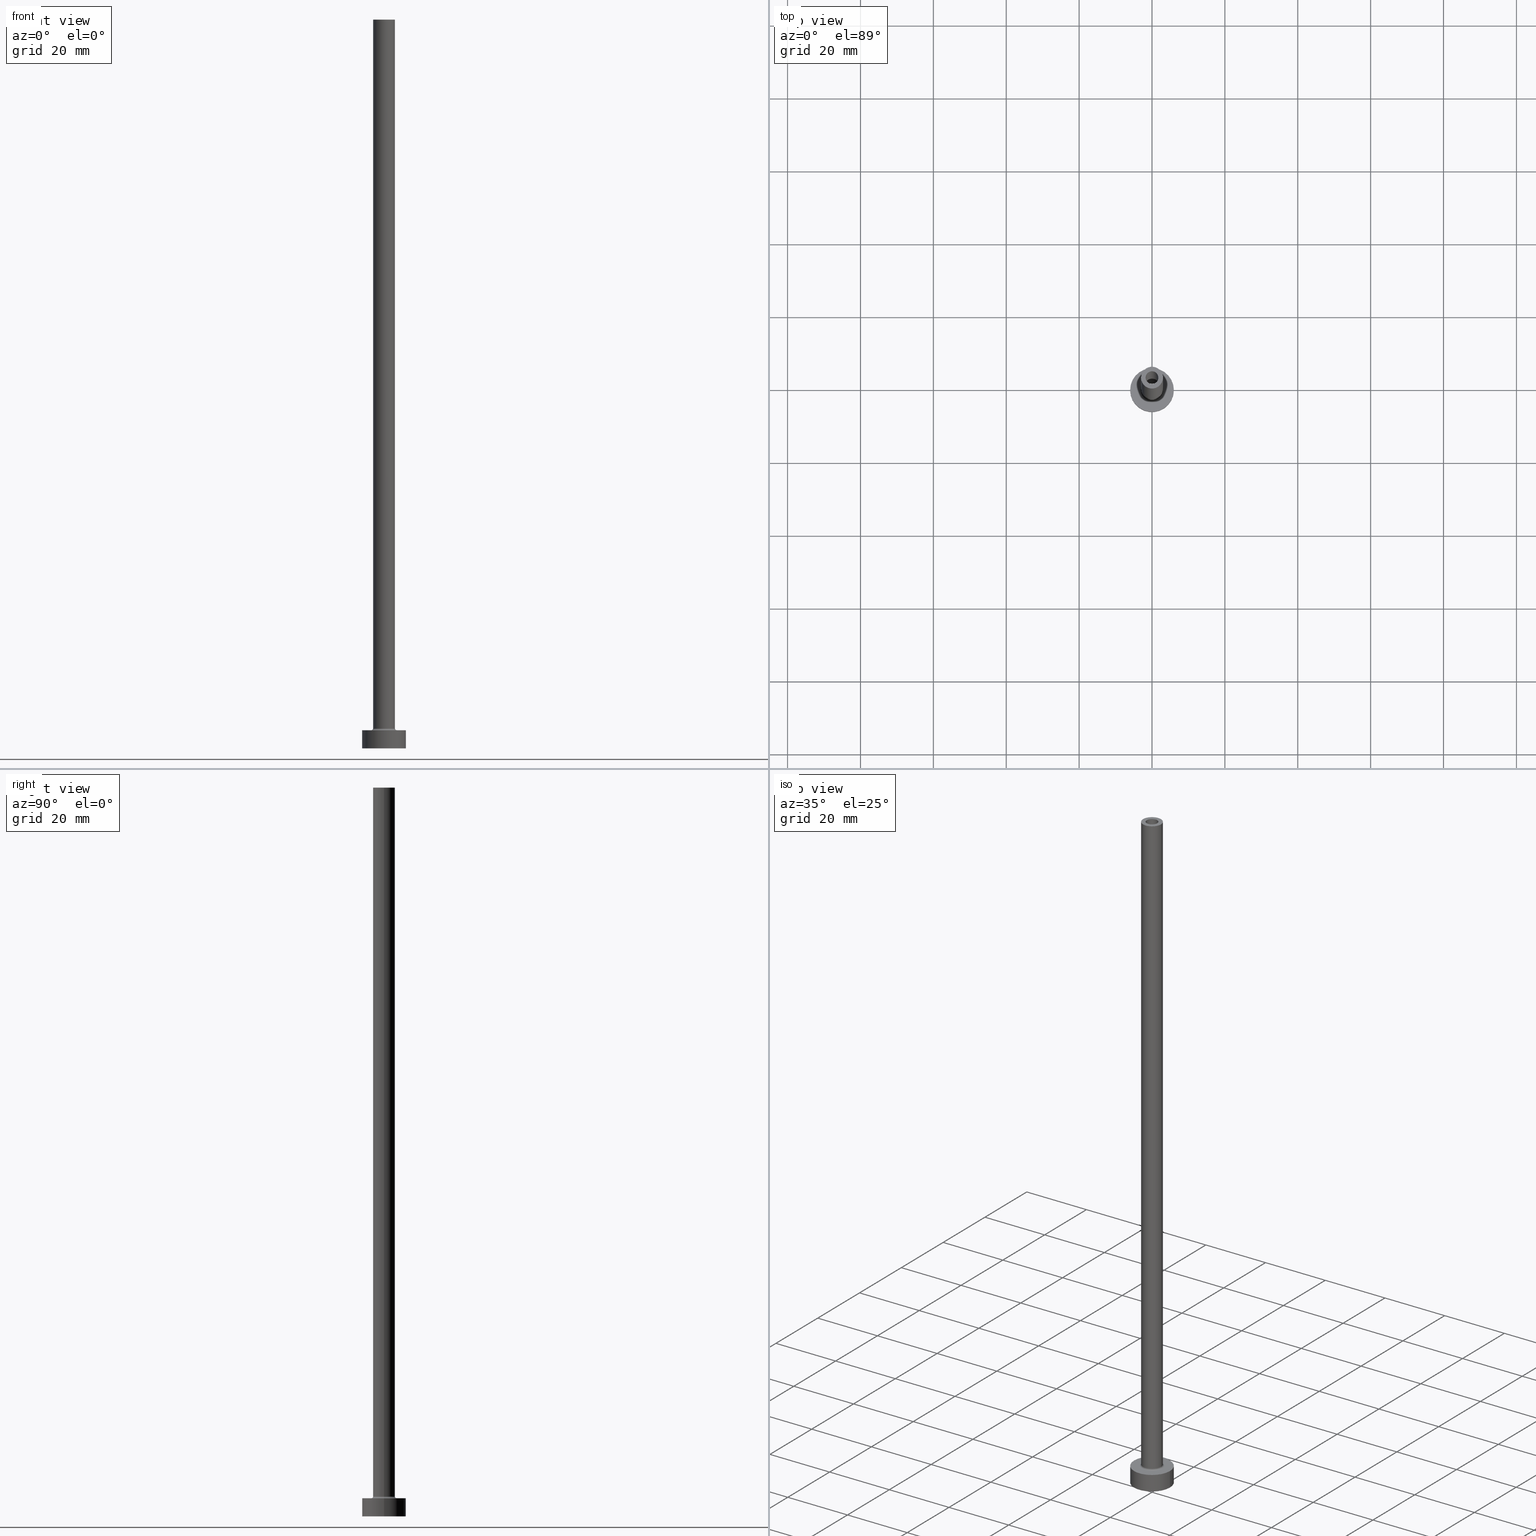
[diagram: canonical four-view strip — front | top / right | iso, engineering-drawing reading convention]
A machine part, canonical four-view strip (front | top / right | iso — engineering-drawing reading convention). The complete STEP part file that produces these views, byte-faithful:
ISO-10303-21;
HEADER;
FILE_DESCRIPTION (( 'STEP AP203' ),
    '1' );
FILE_NAME ('5815.STEP',
    '2023-02-13T17:51:05',
    ( '' ),
    ( '' ),
    'SwSTEP 2.0',
    'SolidWorks 2019',
    '' );
FILE_SCHEMA (( 'CONFIG_CONTROL_DESIGN' ));
ENDSEC;

DATA;
#1 = ADVANCED_FACE ( 'NONE', ( #438 ), #406, .F. ) ;
#2 = DIRECTION ( 'NONE',  ( 0.000000000000000000, 0.000000000000000000, 1.000000000000000000 ) ) ;
#3 = LOCAL_TIME ( 18, 51, 5.000000000000000000, #222 ) ;
#4 = APPROVAL ( #188, 'NEUR�EN�' ) ;
#5 = VERTEX_POINT ( 'NONE', #89 ) ;
#6 = ORIENTED_EDGE ( 'NONE', *, *, #422, .T. ) ;
#7 = CYLINDRICAL_SURFACE ( 'NONE', #176, 3.000000000000000444 ) ;
#8 = ORIENTED_EDGE ( 'NONE', *, *, #384, .T. ) ;
#9 = TOROIDAL_SURFACE ( 'NONE', #312, 3.500000000000000444, 0.5000000000000000000 ) ;
#10 = CIRCLE ( 'NONE', #281, 1.750000000000000000 ) ;
#11 = APPROVAL_DATE_TIME ( #125, #201 ) ;
#12 = VERTEX_POINT ( 'NONE', #85 ) ;
#13 = DIRECTION ( 'NONE',  ( -0.000000000000000000, -0.000000000000000000, -1.000000000000000000 ) ) ;
#14 = PLANE ( 'NONE',  #348 ) ;
#15 = DIRECTION ( 'NONE',  ( 0.000000000000000000, 0.000000000000000000, -1.000000000000000000 ) ) ;
#16 = FACE_OUTER_BOUND ( 'NONE', #61, .T. ) ;
#17 = EDGE_LOOP ( 'NONE', ( #6, #259 ) ) ;
#18 = PRODUCT_DEFINITION ( 'NEZN�M�', '', #330, #90 ) ;
#19 = PERSON_AND_ORGANIZATION_ROLE ( 'design_supplier' ) ;
#20 = CIRCLE ( 'NONE', #133, 1.750000000000000000 ) ;
#21 = DIRECTION ( 'NONE',  ( 0.000000000000000000, 0.000000000000000000, 1.000000000000000000 ) ) ;
#22 = APPLICATION_PROTOCOL_DEFINITION ( 'international standard', 'config_control_design', 1994, #144 ) ;
#23 = CARTESIAN_POINT ( 'NONE',  ( -1.750000000000000000, 0.000000000000000000, 200.0000000000000000 ) ) ;
#24 = ORIENTED_EDGE ( 'NONE', *, *, #67, .F. ) ;
#25 = DIRECTION ( 'NONE',  ( 1.000000000000000000, 0.000000000000000000, 0.000000000000000000 ) ) ;
#26 = PERSON_AND_ORGANIZATION ( #84, #110 ) ;
#27 = DIRECTION ( 'NONE',  ( -0.000000000000000000, -0.000000000000000000, -1.000000000000000000 ) ) ;
#28 = EDGE_CURVE ( 'NONE', #126, #442, #146, .T. ) ;
#29 = CYLINDRICAL_SURFACE ( 'NONE', #450, 6.000000000000000888 ) ;
#30 = CARTESIAN_POINT ( 'NONE',  ( -6.000000000000000888, 0.000000000000000000, 0.000000000000000000 ) ) ;
#31 = VECTOR ( 'NONE', #240, 1000.000000000000000 ) ;
#32 = LINE ( 'NONE', #23, #92 ) ;
#33 = DIRECTION ( 'NONE',  ( 1.000000000000000000, 0.000000000000000000, 0.000000000000000000 ) ) ;
#34 = DIRECTION ( 'NONE',  ( 0.000000000000000000, 0.000000000000000000, -1.000000000000000000 ) ) ;
#35 = ORIENTED_EDGE ( 'NONE', *, *, #362, .T. ) ;
#36 = DIRECTION ( 'NONE',  ( 0.000000000000000000, 0.000000000000000000, 1.000000000000000000 ) ) ;
#37 = AXIS2_PLACEMENT_3D ( 'NONE', #345, #315, #274 ) ;
#38 = LOCAL_TIME ( 18, 51, 5.000000000000000000, #162 ) ;
#39 = PRODUCT_RELATED_PRODUCT_CATEGORY ( 'detail', '', ( #42 ) ) ;
#40 = DIRECTION ( 'NONE',  ( 1.000000000000000000, 0.000000000000000000, 0.000000000000000000 ) ) ;
#41 = DIRECTION ( 'NONE',  ( 0.000000000000000000, 0.000000000000000000, -1.000000000000000000 ) ) ;
#42 = PRODUCT ( '5815', '5815', '', ( #91 ) ) ;
#43 = DIRECTION ( 'NONE',  ( 1.000000000000000000, 0.000000000000000000, 0.000000000000000000 ) ) ;
#44 = CIRCLE ( 'NONE', #343, 3.500000000000000444 ) ;
#45 = EDGE_LOOP ( 'NONE', ( #120, #286 ) ) ;
#46 = EDGE_CURVE ( 'NONE', #215, #5, #449, .T. ) ;
#47 = EDGE_CURVE ( 'NONE', #106, #325, #389, .T. ) ;
#48 = DIRECTION ( 'NONE',  ( 1.000000000000000000, 0.000000000000000000, -0.000000000000000000 ) ) ;
#49 = ORIENTED_EDGE ( 'NONE', *, *, #333, .F. ) ;
#50 = CC_DESIGN_DATE_AND_TIME_ASSIGNMENT ( #262, #394, ( #18 ) ) ;
#51 = AXIS2_PLACEMENT_3D ( 'NONE', #269, #418, #98 ) ;
#52 = EDGE_CURVE ( 'NONE', #288, #5, #456, .T. ) ;
#53 = CALENDAR_DATE ( 2023, 13, 2 ) ;
#54 = EDGE_LOOP ( 'NONE', ( #24, #447, #35, #229 ) ) ;
#55 = CARTESIAN_POINT ( 'NONE',  ( 3.000000000000000444, 3.673940397442060361E-16, 200.0000000000000000 ) ) ;
#56 = CARTESIAN_POINT ( 'NONE',  ( 0.000000000000000000, 0.000000000000000000, 155.0000000000000284 ) ) ;
#57 = CARTESIAN_POINT ( 'NONE',  ( 0.000000000000000000, 0.000000000000000000, 5.500000000000005329 ) ) ;
#58 = CALENDAR_DATE ( 2023, 13, 2 ) ;
#59 = ORIENTED_EDGE ( 'NONE', *, *, #74, .F. ) ;
#60 = ADVANCED_FACE ( 'NONE', ( #196 ), #164, .F. ) ;
#61 = EDGE_LOOP ( 'NONE', ( #204, #327, #235, #411 ) ) ;
#62 = ORIENTED_EDGE ( 'NONE', *, *, #417, .F. ) ;
#63 = CC_DESIGN_PERSON_AND_ORGANIZATION_ASSIGNMENT ( #435, #113, ( #330 ) ) ;
#64 = CARTESIAN_POINT ( 'NONE',  ( -3.000000000000000444, 0.000000000000000000, 200.0000000000000000 ) ) ;
#65 = VECTOR ( 'NONE', #378, 1000.000000000000000 ) ;
#66 = DIRECTION ( 'NONE',  ( -1.000000000000000000, 1.224646799147354440E-16, 0.000000000000000000 ) ) ;
#67 = EDGE_CURVE ( 'NONE', #126, #287, #115, .T. ) ;
#68 =( GEOMETRIC_REPRESENTATION_CONTEXT ( 3 ) GLOBAL_UNCERTAINTY_ASSIGNED_CONTEXT ( ( #189 ) ) GLOBAL_UNIT_ASSIGNED_CONTEXT ( ( #402, #170, #400 ) ) REPRESENTATION_CONTEXT ( 'NONE', 'WORKASPACE' ) );
#69 = LINE ( 'NONE', #460, #300 ) ;
#70 = DIRECTION ( 'NONE',  ( 1.000000000000000000, 0.000000000000000000, 0.000000000000000000 ) ) ;
#71 = EDGE_LOOP ( 'NONE', ( #62, #324, #424, #451 ) ) ;
#72 = CIRCLE ( 'NONE', #116, 3.000000000000000444 ) ;
#73 = ORIENTED_EDGE ( 'NONE', *, *, #124, .F. ) ;
#74 = EDGE_CURVE ( 'NONE', #129, #275, #237, .T. ) ;
#75 = EDGE_LOOP ( 'NONE', ( #388, #335, #77, #248 ) ) ;
#76 = ADVANCED_FACE ( 'NONE', ( #278 ), #9, .F. ) ;
#77 = ORIENTED_EDGE ( 'NONE', *, *, #384, .F. ) ;
#78 = PERSON_AND_ORGANIZATION ( #84, #110 ) ;
#79 = CARTESIAN_POINT ( 'NONE',  ( 0.000000000000000000, 0.000000000000000000, 5.000000000000000000 ) ) ;
#80 = APPROVAL_ROLE ( '' ) ;
#81 = ORIENTED_EDGE ( 'NONE', *, *, #381, .T. ) ;
#82 = EDGE_CURVE ( 'NONE', #114, #219, #354, .T. ) ;
#83 = CIRCLE ( 'NONE', #128, 1.899999999999999911 ) ;
#84 = PERSON ( 'NEUR�EN�', 'NEUR�EN�', 'NEUR�EN�', ('NEUR�EN�'), ('NEUR�EN�'), ('NEUR�EN�') ) ;
#85 = CARTESIAN_POINT ( 'NONE',  ( -1.899999999999999911, 0.000000000000000000, 0.000000000000000000 ) ) ;
#86 = COORDINATED_UNIVERSAL_TIME_OFFSET ( 1, 0, .AHEAD. ) ;
#87 = CARTESIAN_POINT ( 'NONE',  ( 1.750000000000000000, 2.143131898507867804E-16, 200.0000000000000000 ) ) ;
#88 = COORDINATED_UNIVERSAL_TIME_OFFSET ( 1, 0, .AHEAD. ) ;
#89 = CARTESIAN_POINT ( 'NONE',  ( 6.000000000000000888, 7.347880794884120722E-16, 0.000000000000000000 ) ) ;
#90 = DESIGN_CONTEXT ( 'detailed design', #118, 'design' ) ;
#91 = MECHANICAL_CONTEXT ( 'NONE', #144, 'mechanical' ) ;
#92 = VECTOR ( 'NONE', #308, 1000.000000000000000 ) ;
#93 = DIRECTION ( 'NONE',  ( 1.000000000000000000, 0.000000000000000000, 0.000000000000000000 ) ) ;
#94 = DIRECTION ( 'NONE',  ( -1.000000000000000000, 0.000000000000000000, 0.000000000000000000 ) ) ;
#95 = ORIENTED_EDGE ( 'NONE', *, *, #82, .T. ) ;
#96 = DIRECTION ( 'NONE',  ( 1.000000000000000000, 0.000000000000000000, 0.000000000000000000 ) ) ;
#97 = CARTESIAN_POINT ( 'NONE',  ( 0.000000000000000000, 0.000000000000000000, 155.0000000000000284 ) ) ;
#98 = DIRECTION ( 'NONE',  ( 1.000000000000000000, 0.000000000000000000, 0.000000000000000000 ) ) ;
#99 = AXIS2_PLACEMENT_3D ( 'NONE', #416, #380, #264 ) ;
#100 = EDGE_CURVE ( 'NONE', #288, #165, #166, .T. ) ;
#101 = VECTOR ( 'NONE', #369, 1000.000000000000000 ) ;
#102 = VECTOR ( 'NONE', #34, 1000.000000000000000 ) ;
#103 = DIRECTION ( 'NONE',  ( -1.000000000000000000, 0.000000000000000000, 0.000000000000000000 ) ) ;
#104 = CARTESIAN_POINT ( 'NONE',  ( 0.000000000000000000, 0.000000000000000000, 5.000000000000000000 ) ) ;
#105 = FACE_OUTER_BOUND ( 'NONE', #45, .T. ) ;
#106 = VERTEX_POINT ( 'NONE', #134 ) ;
#107 = FACE_BOUND ( 'NONE', #399, .T. ) ;
#108 = ORIENTED_EDGE ( 'NONE', *, *, #124, .T. ) ;
#109 = VECTOR ( 'NONE', #412, 1000.000000000000000 ) ;
#110 = ORGANIZATION ( 'NEUR�EN�', 'NEUR�EN�', '' ) ;
#111 = DIRECTION ( 'NONE',  ( 1.000000000000000000, 0.000000000000000000, 0.000000000000000000 ) ) ;
#112 = ADVANCED_FACE ( 'NONE', ( #273, #243 ), #205, .F. ) ;
#113 = PERSON_AND_ORGANIZATION_ROLE ( 'creator' ) ;
#114 = VERTEX_POINT ( 'NONE', #423 ) ;
#115 = CIRCLE ( 'NONE', #244, 3.000000000000000444 ) ;
#116 = AXIS2_PLACEMENT_3D ( 'NONE', #260, #338, #96 ) ;
#117 = APPROVAL_PERSON_ORGANIZATION ( #398, #201, #303 ) ;
#118 = APPLICATION_CONTEXT ( 'configuration controlled 3d designs of mechanical parts and assemblies' ) ;
#119 = PERSON_AND_ORGANIZATION ( #84, #110 ) ;
#120 = ORIENTED_EDGE ( 'NONE', *, *, #46, .F. ) ;
#121 = CARTESIAN_POINT ( 'NONE',  ( 0.000000000000000000, 0.000000000000000000, 5.500000000000005329 ) ) ;
#122 = DIRECTION ( 'NONE',  ( 1.000000000000000000, 0.000000000000000000, 0.000000000000000000 ) ) ;
#123 = ADVANCED_FACE ( 'NONE', ( #270 ), #279, .F. ) ;
#124 = EDGE_CURVE ( 'NONE', #165, #215, #409, .T. ) ;
#125 = DATE_AND_TIME ( #445, #284 ) ;
#126 = VERTEX_POINT ( 'NONE', #443 ) ;
#127 = AXIS2_PLACEMENT_3D ( 'NONE', #104, #322, #455 ) ;
#128 = AXIS2_PLACEMENT_3D ( 'NONE', #195, #407, #340 ) ;
#129 = VERTEX_POINT ( 'NONE', #339 ) ;
#130 = DIRECTION ( 'NONE',  ( 1.000000000000000000, 0.000000000000000000, 0.000000000000000000 ) ) ;
#131 = CARTESIAN_POINT ( 'NONE',  ( 0.000000000000000000, 0.000000000000000000, 5.000000000000000000 ) ) ;
#132 = CLOSED_SHELL ( 'NONE', ( #1, #304, #76, #214, #175, #135, #326, #452, #199, #148, #123, #60, #112, #366 ) ) ;
#133 = AXIS2_PLACEMENT_3D ( 'NONE', #56, #310, #444 ) ;
#134 = CARTESIAN_POINT ( 'NONE',  ( -3.000000000000000444, 0.000000000000000000, 5.500000000000005329 ) ) ;
#135 = ADVANCED_FACE ( 'NONE', ( #415 ), #29, .T. ) ;
#136 = CARTESIAN_POINT ( 'NONE',  ( 0.000000000000000000, 0.000000000000000000, 0.000000000000000000 ) ) ;
#137 = CARTESIAN_POINT ( 'NONE',  ( 0.000000000000000000, 0.000000000000000000, 5.000000000000000000 ) ) ;
#138 = DIRECTION ( 'NONE',  ( 0.000000000000000000, 0.000000000000000000, 1.000000000000000000 ) ) ;
#139 = CIRCLE ( 'NONE', #376, 6.000000000000000888 ) ;
#140 = DIRECTION ( 'NONE',  ( -1.000000000000000000, 0.000000000000000000, 0.000000000000000000 ) ) ;
#141 = ORIENTED_EDGE ( 'NONE', *, *, #268, .F. ) ;
#142 = DIRECTION ( 'NONE',  ( -1.000000000000000000, 0.000000000000000000, 0.000000000000000000 ) ) ;
#143 = CIRCLE ( 'NONE', #292, 1.899999999999999911 ) ;
#144 = APPLICATION_CONTEXT ( 'configuration controlled 3d designs of mechanical parts and assemblies' ) ;
#145 = EDGE_CURVE ( 'NONE', #219, #114, #10, .T. ) ;
#146 = LINE ( 'NONE', #55, #101 ) ;
#147 = EDGE_LOOP ( 'NONE', ( #169, #49, #177, #346 ) ) ;
#148 = ADVANCED_FACE ( 'NONE', ( #107, #253 ), #14, .T. ) ;
#149 = APPROVAL_STATUS ( 'not_yet_approved' ) ;
#150 = DIRECTION ( 'NONE',  ( 1.000000000000000000, 0.000000000000000000, -0.000000000000000000 ) ) ;
#151 = FACE_OUTER_BOUND ( 'NONE', #147, .T. ) ;
#152 = PERSON_AND_ORGANIZATION ( #84, #110 ) ;
#153 = AXIS2_PLACEMENT_3D ( 'NONE', #57, #336, #25 ) ;
#154 = ORIENTED_EDGE ( 'NONE', *, *, #167, .F. ) ;
#155 = AXIS2_PLACEMENT_3D ( 'NONE', #332, #13, #225 ) ;
#156 = CIRCLE ( 'NONE', #202, 3.000000000000000444 ) ;
#157 = DIRECTION ( 'NONE',  ( 1.000000000000000000, 0.000000000000000000, 0.000000000000000000 ) ) ;
#158 = COORDINATED_UNIVERSAL_TIME_OFFSET ( 1, 0, .AHEAD. ) ;
#159 = CYLINDRICAL_SURFACE ( 'NONE', #321, 6.000000000000000888 ) ;
#160 = CARTESIAN_POINT ( 'NONE',  ( -6.000000000000000888, 0.000000000000000000, 5.000000000000000000 ) ) ;
#161 = DIRECTION ( 'NONE',  ( 0.000000000000000000, 0.000000000000000000, 1.000000000000000000 ) ) ;
#162 = COORDINATED_UNIVERSAL_TIME_OFFSET ( 1, 0, .AHEAD. ) ;
#163 = CYLINDRICAL_SURFACE ( 'NONE', #420, 1.899999999999999911 ) ;
#164 = CYLINDRICAL_SURFACE ( 'NONE', #99, 1.899999999999999911 ) ;
#165 = VERTEX_POINT ( 'NONE', #297 ) ;
#166 = CIRCLE ( 'NONE', #127, 6.000000000000000888 ) ;
#167 = EDGE_CURVE ( 'NONE', #114, #191, #32, .T. ) ;
#168 = CIRCLE ( 'NONE', #439, 6.000000000000000888 ) ;
#169 = ORIENTED_EDGE ( 'NONE', *, *, #28, .F. ) ;
#170 =( NAMED_UNIT ( * ) PLANE_ANGLE_UNIT ( ) SI_UNIT ( $, .RADIAN. ) );
#171 = FACE_OUTER_BOUND ( 'NONE', #71, .T. ) ;
#172 = DIRECTION ( 'NONE',  ( 0.000000000000000000, 0.000000000000000000, 1.000000000000000000 ) ) ;
#173 = ORIENTED_EDGE ( 'NONE', *, *, #282, .F. ) ;
#174 = DIRECTION ( 'NONE',  ( 0.000000000000000000, 0.000000000000000000, -1.000000000000000000 ) ) ;
#175 = ADVANCED_FACE ( 'NONE', ( #446 ), #159, .T. ) ;
#176 = AXIS2_PLACEMENT_3D ( 'NONE', #361, #186, #181 ) ;
#177 = ORIENTED_EDGE ( 'NONE', *, *, #184, .T. ) ;
#178 = ORIENTED_EDGE ( 'NONE', *, *, #433, .T. ) ;
#179 = ORIENTED_EDGE ( 'NONE', *, *, #458, .F. ) ;
#180 = ORIENTED_EDGE ( 'NONE', *, *, #233, .F. ) ;
#181 = DIRECTION ( 'NONE',  ( -1.000000000000000000, 0.000000000000000000, 0.000000000000000000 ) ) ;
#182 = APPROVAL_DATE_TIME ( #256, #4 ) ;
#183 = APPROVAL_PERSON_ORGANIZATION ( #119, #453, #193 ) ;
#184 = EDGE_CURVE ( 'NONE', #287, #106, #234, .T. ) ;
#185 = CC_DESIGN_SECURITY_CLASSIFICATION ( #272, ( #330 ) ) ;
#186 = DIRECTION ( 'NONE',  ( -0.000000000000000000, -0.000000000000000000, -1.000000000000000000 ) ) ;
#187 = ADVANCED_BREP_SHAPE_REPRESENTATION ( '5815', ( #414, #313 ), #68 ) ;
#188 = APPROVAL_STATUS ( 'not_yet_approved' ) ;
#189 = UNCERTAINTY_MEASURE_WITH_UNIT (LENGTH_MEASURE( 1.000000000000000082E-05 ), #402, 'distance_accuracy_value', 'NONE');
#190 = PERSON_AND_ORGANIZATION ( #84, #110 ) ;
#191 = VERTEX_POINT ( 'NONE', #368 ) ;
#192 = AXIS2_PLACEMENT_3D ( 'NONE', #136, #350, #387 ) ;
#193 = APPROVAL_ROLE ( '' ) ;
#194 = CC_DESIGN_PERSON_AND_ORGANIZATION_ASSIGNMENT ( #26, #228, ( #272 ) ) ;
#195 = CARTESIAN_POINT ( 'NONE',  ( 0.000000000000000000, 0.000000000000000000, 155.0000000000000284 ) ) ;
#196 = FACE_OUTER_BOUND ( 'NONE', #223, .T. ) ;
#197 = EDGE_LOOP ( 'NONE', ( #360, #250, #81, #73 ) ) ;
#198 = DIRECTION ( 'NONE',  ( -0.000000000000000000, -0.000000000000000000, -1.000000000000000000 ) ) ;
#199 = ADVANCED_FACE ( 'NONE', ( #151 ), #7, .T. ) ;
#200 = DIRECTION ( 'NONE',  ( 0.000000000000000000, 0.000000000000000000, 1.000000000000000000 ) ) ;
#202 = AXIS2_PLACEMENT_3D ( 'NONE', #121, #277, #349 ) ;
#201 = APPROVAL ( #149, 'NEUR�EN�' ) ;
#203 = DIRECTION ( 'NONE',  ( 0.000000000000000000, 0.000000000000000000, 1.000000000000000000 ) ) ;
#204 = ORIENTED_EDGE ( 'NONE', *, *, #393, .T. ) ;
#205 = PLANE ( 'NONE',  #37 ) ;
#206 = CARTESIAN_POINT ( 'NONE',  ( 1.899999999999999911, 2.326828918379971365E-16, 160.3740115370177932 ) ) ;
#207 = ORIENTED_EDGE ( 'NONE', *, *, #458, .T. ) ;
#208 = CARTESIAN_POINT ( 'NONE',  ( 3.500000000000000444, 0.000000000000000000, 5.500000000000005329 ) ) ;
#209 = CARTESIAN_POINT ( 'NONE',  ( 3.500000000000000444, 0.000000000000000000, 5.000000000000002665 ) ) ;
#210 = EDGE_LOOP ( 'NONE', ( #373, #290 ) ) ;
#211 = CARTESIAN_POINT ( 'NONE',  ( 0.000000000000000000, 0.000000000000000000, 200.0000000000000000 ) ) ;
#212 = ORIENTED_EDGE ( 'NONE', *, *, #145, .F. ) ;
#213 = CIRCLE ( 'NONE', #421, 1.750000000000000000 ) ;
#214 = ADVANCED_FACE ( 'NONE', ( #252 ), #364, .T. ) ;
#215 = VERTEX_POINT ( 'NONE', #30 ) ;
#216 = DIRECTION ( 'NONE',  ( 0.000000000000000000, 0.000000000000000000, -1.000000000000000000 ) ) ;
#217 = EDGE_CURVE ( 'NONE', #454, #191, #20, .T. ) ;
#218 = SHAPE_DEFINITION_REPRESENTATION ( #363, #187 ) ;
#219 = VERTEX_POINT ( 'NONE', #87 ) ;
#220 = DATE_AND_TIME ( #301, #323 ) ;
#221 = AXIS2_PLACEMENT_3D ( 'NONE', #131, #227, #232 ) ;
#222 = COORDINATED_UNIVERSAL_TIME_OFFSET ( 1, 0, .AHEAD. ) ;
#223 = EDGE_LOOP ( 'NONE', ( #59, #316, #263, #207 ) ) ;
#224 = DIRECTION ( 'NONE',  ( -1.000000000000000000, 0.000000000000000000, 0.000000000000000000 ) ) ;
#225 = DIRECTION ( 'NONE',  ( -1.000000000000000000, 0.000000000000000000, 0.000000000000000000 ) ) ;
#226 = ORIENTED_EDGE ( 'NONE', *, *, #333, .T. ) ;
#227 = DIRECTION ( 'NONE',  ( -0.000000000000000000, -0.000000000000000000, -1.000000000000000000 ) ) ;
#228 = PERSON_AND_ORGANIZATION_ROLE ( 'classification_officer' ) ;
#229 = ORIENTED_EDGE ( 'NONE', *, *, #184, .F. ) ;
#230 = CC_DESIGN_APPROVAL ( #4, ( #18 ) ) ;
#231 = PLANE ( 'NONE',  #271 ) ;
#232 = DIRECTION ( 'NONE',  ( 1.000000000000000000, 0.000000000000000000, 0.000000000000000000 ) ) ;
#233 = EDGE_CURVE ( 'NONE', #325, #382, #306, .T. ) ;
#234 = LINE ( 'NONE', #341, #31 ) ;
#235 = ORIENTED_EDGE ( 'NONE', *, *, #392, .T. ) ;
#236 = DIRECTION ( 'NONE',  ( 1.000000000000000000, 0.000000000000000000, 0.000000000000000000 ) ) ;
#237 = LINE ( 'NONE', #206, #432 ) ;
#238 = ORIENTED_EDGE ( 'NONE', *, *, #67, .T. ) ;
#239 = CC_DESIGN_PERSON_AND_ORGANIZATION_ASSIGNMENT ( #78, #410, ( #18 ) ) ;
#240 = DIRECTION ( 'NONE',  ( -0.000000000000000000, -0.000000000000000000, -1.000000000000000000 ) ) ;
#241 = EDGE_LOOP ( 'NONE', ( #179, #298 ) ) ;
#242 = CIRCLE ( 'NONE', #413, 1.899999999999999911 ) ;
#243 = FACE_OUTER_BOUND ( 'NONE', #459, .T. ) ;
#244 = AXIS2_PLACEMENT_3D ( 'NONE', #375, #161, #93 ) ;
#245 = LOCAL_TIME ( 18, 51, 5.000000000000000000, #86 ) ;
#246 = CARTESIAN_POINT ( 'NONE',  ( 0.000000000000000000, 0.000000000000000000, 5.500000000000005329 ) ) ;
#247 = ORIENTED_EDGE ( 'NONE', *, *, #417, .T. ) ;
#248 = ORIENTED_EDGE ( 'NONE', *, *, #433, .F. ) ;
#249 = EDGE_CURVE ( 'NONE', #430, #12, #305, .T. ) ;
#250 = ORIENTED_EDGE ( 'NONE', *, *, #52, .T. ) ;
#251 = AXIS2_PLACEMENT_3D ( 'NONE', #431, #198, #33 ) ;
#252 = FACE_OUTER_BOUND ( 'NONE', #54, .T. ) ;
#253 = FACE_OUTER_BOUND ( 'NONE', #255, .T. ) ;
#254 = DATE_AND_TIME ( #299, #245 ) ;
#255 = EDGE_LOOP ( 'NONE', ( #226, #238 ) ) ;
#256 = DATE_AND_TIME ( #53, #3 ) ;
#257 = CARTESIAN_POINT ( 'NONE',  ( 0.000000000000000000, 0.000000000000000000, 160.3740115370177932 ) ) ;
#258 = CC_DESIGN_APPROVAL ( #453, ( #330 ) ) ;
#259 = ORIENTED_EDGE ( 'NONE', *, *, #100, .T. ) ;
#260 = CARTESIAN_POINT ( 'NONE',  ( 0.000000000000000000, 0.000000000000000000, 200.0000000000000000 ) ) ;
#261 = CARTESIAN_POINT ( 'NONE',  ( -1.899999999999999911, 0.000000000000000000, 160.3740115370177932 ) ) ;
#262 = DATE_AND_TIME ( #58, #38 ) ;
#263 = ORIENTED_EDGE ( 'NONE', *, *, #249, .T. ) ;
#264 = DIRECTION ( 'NONE',  ( -1.000000000000000000, 0.000000000000000000, 0.000000000000000000 ) ) ;
#265 = DIRECTION ( 'NONE',  ( 1.224646799147353207E-16, 1.000000000000000000, -0.000000000000000000 ) ) ;
#266 = AXIS2_PLACEMENT_3D ( 'NONE', #211, #36, #43 ) ;
#267 = CIRCLE ( 'NONE', #390, 0.5000000000000004441 ) ;
#268 = EDGE_CURVE ( 'NONE', #129, #430, #83, .T. ) ;
#269 = CARTESIAN_POINT ( 'NONE',  ( 0.000000000000000000, 0.000000000000000000, 5.500000000000005329 ) ) ;
#270 = FACE_OUTER_BOUND ( 'NONE', #302, .T. ) ;
#271 = AXIS2_PLACEMENT_3D ( 'NONE', #79, #371, #150 ) ;
#272 = SECURITY_CLASSIFICATION ( '', '', #331 ) ;
#273 = FACE_BOUND ( 'NONE', #210, .T. ) ;
#274 = DIRECTION ( 'NONE',  ( 1.000000000000000000, 0.000000000000000000, -0.000000000000000000 ) ) ;
#275 = VERTEX_POINT ( 'NONE', #419 ) ;
#276 = DIRECTION ( 'NONE',  ( -0.000000000000000000, -0.000000000000000000, -1.000000000000000000 ) ) ;
#277 = DIRECTION ( 'NONE',  ( 0.000000000000000000, 0.000000000000000000, 1.000000000000000000 ) ) ;
#278 = FACE_OUTER_BOUND ( 'NONE', #75, .T. ) ;
#279 = TOROIDAL_SURFACE ( 'NONE', #153, 3.500000000000000444, 0.5000000000000000000 ) ;
#280 = CARTESIAN_POINT ( 'NONE',  ( 0.000000000000000000, 0.000000000000000000, 200.0000000000000000 ) ) ;
#281 = AXIS2_PLACEMENT_3D ( 'NONE', #428, #395, #111 ) ;
#282 = EDGE_CURVE ( 'NONE', #191, #454, #213, .T. ) ;
#283 = DIRECTION ( 'NONE',  ( 0.000000000000000000, 0.000000000000000000, -1.000000000000000000 ) ) ;
#284 = LOCAL_TIME ( 18, 51, 5.000000000000000000, #88 ) ;
#285 = CC_DESIGN_PERSON_AND_ORGANIZATION_ASSIGNMENT ( #190, #19, ( #330 ) ) ;
#286 = ORIENTED_EDGE ( 'NONE', *, *, #381, .F. ) ;
#287 = VERTEX_POINT ( 'NONE', #64 ) ;
#288 = VERTEX_POINT ( 'NONE', #405 ) ;
#289 = PLANE ( 'NONE',  #192 ) ;
#290 = ORIENTED_EDGE ( 'NONE', *, *, #217, .T. ) ;
#291 = CARTESIAN_POINT ( 'NONE',  ( -3.500000000000000444, 4.286263797015737088E-16, 5.500000000000005329 ) ) ;
#292 = AXIS2_PLACEMENT_3D ( 'NONE', #383, #276, #425 ) ;
#293 = CC_DESIGN_APPROVAL ( #201, ( #272 ) ) ;
#294 = APPROVAL_DATE_TIME ( #254, #453 ) ;
#295 = CC_DESIGN_PERSON_AND_ORGANIZATION_ASSIGNMENT ( #152, #296, ( #42 ) ) ;
#296 = PERSON_AND_ORGANIZATION_ROLE ( 'design_owner' ) ;
#297 = CARTESIAN_POINT ( 'NONE',  ( -6.000000000000000888, 0.000000000000000000, 5.000000000000000000 ) ) ;
#298 = ORIENTED_EDGE ( 'NONE', *, *, #392, .F. ) ;
#299 = CALENDAR_DATE ( 2023, 13, 2 ) ;
#300 = VECTOR ( 'NONE', #174, 1000.000000000000000 ) ;
#301 = CALENDAR_DATE ( 2023, 13, 2 ) ;
#302 = EDGE_LOOP ( 'NONE', ( #328, #367, #178, #180 ) ) ;
#303 = APPROVAL_ROLE ( '' ) ;
#304 = ADVANCED_FACE ( 'NONE', ( #16 ), #163, .F. ) ;
#305 = LINE ( 'NONE', #261, #102 ) ;
#306 = CIRCLE ( 'NONE', #221, 3.500000000000000444 ) ;
#307 = CARTESIAN_POINT ( 'NONE',  ( 0.000000000000000000, 0.000000000000000000, 155.0000000000000284 ) ) ;
#308 = DIRECTION ( 'NONE',  ( 0.000000000000000000, 0.000000000000000000, -1.000000000000000000 ) ) ;
#309 = ORIENTED_EDGE ( 'NONE', *, *, #82, .F. ) ;
#310 = DIRECTION ( 'NONE',  ( 0.000000000000000000, 0.000000000000000000, 1.000000000000000000 ) ) ;
#311 = EDGE_LOOP ( 'NONE', ( #357, #379, #108, #353 ) ) ;
#312 = AXIS2_PLACEMENT_3D ( 'NONE', #246, #172, #318 ) ;
#313 = AXIS2_PLACEMENT_3D ( 'NONE', #377, #408, #122 ) ;
#314 = DIRECTION ( 'NONE',  ( -0.000000000000000000, -0.000000000000000000, -1.000000000000000000 ) ) ;
#315 = DIRECTION ( 'NONE',  ( 0.000000000000000000, 0.000000000000000000, 1.000000000000000000 ) ) ;
#316 = ORIENTED_EDGE ( 'NONE', *, *, #268, .T. ) ;
#317 = CYLINDRICAL_SURFACE ( 'NONE', #334, 1.750000000000000000 ) ;
#318 = DIRECTION ( 'NONE',  ( 1.000000000000000000, 0.000000000000000000, 0.000000000000000000 ) ) ;
#319 = CARTESIAN_POINT ( 'NONE',  ( 1.750000000000000000, 2.143131898507867804E-16, 155.0000000000000284 ) ) ;
#320 = CARTESIAN_POINT ( 'NONE',  ( 3.000000000000000444, 3.673940397442060361E-16, 5.500000000000005329 ) ) ;
#321 = AXIS2_PLACEMENT_3D ( 'NONE', #441, #27, #94 ) ;
#322 = DIRECTION ( 'NONE',  ( 0.000000000000000000, 0.000000000000000000, 1.000000000000000000 ) ) ;
#323 = LOCAL_TIME ( 18, 51, 5.000000000000000000, #158 ) ;
#324 = ORIENTED_EDGE ( 'NONE', *, *, #145, .T. ) ;
#325 = VERTEX_POINT ( 'NONE', #358 ) ;
#326 = ADVANCED_FACE ( 'NONE', ( #342, #374 ), #231, .T. ) ;
#327 = ORIENTED_EDGE ( 'NONE', *, *, #74, .T. ) ;
#328 = ORIENTED_EDGE ( 'NONE', *, *, #47, .F. ) ;
#329 = AXIS2_PLACEMENT_3D ( 'NONE', #291, #265, #66 ) ;
#330 = PRODUCT_DEFINITION_FORMATION_WITH_SPECIFIED_SOURCE ( 'LIBOVOLN�', '', #42, .NOT_KNOWN. ) ;
#331 = SECURITY_CLASSIFICATION_LEVEL ( 'unclassified' ) ;
#332 = CARTESIAN_POINT ( 'NONE',  ( 0.000000000000000000, 0.000000000000000000, 200.0000000000000000 ) ) ;
#333 = EDGE_CURVE ( 'NONE', #287, #126, #72, .T. ) ;
#334 = AXIS2_PLACEMENT_3D ( 'NONE', #280, #427, #140 ) ;
#335 = ORIENTED_EDGE ( 'NONE', *, *, #47, .T. ) ;
#336 = DIRECTION ( 'NONE',  ( 0.000000000000000000, 0.000000000000000000, 1.000000000000000000 ) ) ;
#337 = APPLICATION_PROTOCOL_DEFINITION ( 'international standard', 'config_control_design', 1994, #118 ) ;
#338 = DIRECTION ( 'NONE',  ( 0.000000000000000000, 0.000000000000000000, 1.000000000000000000 ) ) ;
#339 = CARTESIAN_POINT ( 'NONE',  ( 1.899999999999999911, 2.326828918379971365E-16, 155.0000000000000284 ) ) ;
#340 = DIRECTION ( 'NONE',  ( 1.000000000000000000, 0.000000000000000000, 0.000000000000000000 ) ) ;
#341 = CARTESIAN_POINT ( 'NONE',  ( -3.000000000000000444, 0.000000000000000000, 200.0000000000000000 ) ) ;
#342 = FACE_BOUND ( 'NONE', #386, .T. ) ;
#343 = AXIS2_PLACEMENT_3D ( 'NONE', #352, #314, #40 ) ;
#344 = CARTESIAN_POINT ( 'NONE',  ( 6.000000000000000888, 7.347880794884120722E-16, 5.000000000000000000 ) ) ;
#345 = CARTESIAN_POINT ( 'NONE',  ( 0.000000000000000000, 0.000000000000000000, 155.0000000000000284 ) ) ;
#346 = ORIENTED_EDGE ( 'NONE', *, *, #397, .T. ) ;
#347 = AXIS2_PLACEMENT_3D ( 'NONE', #396, #21, #157 ) ;
#348 = AXIS2_PLACEMENT_3D ( 'NONE', #401, #359, #48 ) ;
#349 = DIRECTION ( 'NONE',  ( 1.000000000000000000, 0.000000000000000000, 0.000000000000000000 ) ) ;
#350 = DIRECTION ( 'NONE',  ( 0.000000000000000000, 0.000000000000000000, 1.000000000000000000 ) ) ;
#351 = DIRECTION ( 'NONE',  ( 0.000000000000000000, -1.000000000000000000, 0.000000000000000000 ) ) ;
#352 = CARTESIAN_POINT ( 'NONE',  ( 0.000000000000000000, 0.000000000000000000, 5.000000000000000000 ) ) ;
#353 = ORIENTED_EDGE ( 'NONE', *, *, #46, .T. ) ;
#354 = CIRCLE ( 'NONE', #266, 1.750000000000000000 ) ;
#355 = AXIS2_PLACEMENT_3D ( 'NONE', #365, #15, #224 ) ;
#356 = CIRCLE ( 'NONE', #51, 3.000000000000000444 ) ;
#357 = ORIENTED_EDGE ( 'NONE', *, *, #52, .F. ) ;
#358 = CARTESIAN_POINT ( 'NONE',  ( -3.500000000000000444, 4.286263797015737088E-16, 5.000000000000002665 ) ) ;
#359 = DIRECTION ( 'NONE',  ( 0.000000000000000000, 0.000000000000000000, 1.000000000000000000 ) ) ;
#360 = ORIENTED_EDGE ( 'NONE', *, *, #100, .F. ) ;
#361 = CARTESIAN_POINT ( 'NONE',  ( 0.000000000000000000, 0.000000000000000000, 200.0000000000000000 ) ) ;
#362 = EDGE_CURVE ( 'NONE', #442, #106, #156, .T. ) ;
#363 = PRODUCT_DEFINITION_SHAPE ( 'NONE', 'NONE',  #18 ) ;
#364 = CYLINDRICAL_SURFACE ( 'NONE', #155, 3.000000000000000444 ) ;
#365 = CARTESIAN_POINT ( 'NONE',  ( 0.000000000000000000, 0.000000000000000000, 200.0000000000000000 ) ) ;
#366 = ADVANCED_FACE ( 'NONE', ( #171 ), #317, .F. ) ;
#367 = ORIENTED_EDGE ( 'NONE', *, *, #362, .F. ) ;
#368 = CARTESIAN_POINT ( 'NONE',  ( -1.750000000000000000, 0.000000000000000000, 155.0000000000000284 ) ) ;
#369 = DIRECTION ( 'NONE',  ( -0.000000000000000000, -0.000000000000000000, -1.000000000000000000 ) ) ;
#370 = APPROVAL_STATUS ( 'not_yet_approved' ) ;
#371 = DIRECTION ( 'NONE',  ( 0.000000000000000000, 0.000000000000000000, 1.000000000000000000 ) ) ;
#372 = FACE_BOUND ( 'NONE', #241, .T. ) ;
#373 = ORIENTED_EDGE ( 'NONE', *, *, #282, .T. ) ;
#374 = FACE_OUTER_BOUND ( 'NONE', #17, .T. ) ;
#375 = CARTESIAN_POINT ( 'NONE',  ( 0.000000000000000000, 0.000000000000000000, 200.0000000000000000 ) ) ;
#376 = AXIS2_PLACEMENT_3D ( 'NONE', #137, #2, #426 ) ;
#377 = CARTESIAN_POINT ( 'NONE',  ( 0.000000000000000000, 0.000000000000000000, 0.000000000000000000 ) ) ;
#378 = DIRECTION ( 'NONE',  ( -0.000000000000000000, -0.000000000000000000, -1.000000000000000000 ) ) ;
#379 = ORIENTED_EDGE ( 'NONE', *, *, #422, .F. ) ;
#380 = DIRECTION ( 'NONE',  ( 0.000000000000000000, 0.000000000000000000, -1.000000000000000000 ) ) ;
#381 = EDGE_CURVE ( 'NONE', #5, #215, #168, .T. ) ;
#382 = VERTEX_POINT ( 'NONE', #209 ) ;
#383 = CARTESIAN_POINT ( 'NONE',  ( 0.000000000000000000, 0.000000000000000000, 0.000000000000000000 ) ) ;
#384 = EDGE_CURVE ( 'NONE', #382, #325, #44, .T. ) ;
#385 = CARTESIAN_POINT ( 'NONE',  ( -1.899999999999999911, 0.000000000000000000, 155.0000000000000284 ) ) ;
#386 = EDGE_LOOP ( 'NONE', ( #8, #391 ) ) ;
#387 = DIRECTION ( 'NONE',  ( 1.000000000000000000, 0.000000000000000000, -0.000000000000000000 ) ) ;
#388 = ORIENTED_EDGE ( 'NONE', *, *, #397, .F. ) ;
#389 = CIRCLE ( 'NONE', #329, 0.4999999999999995559 ) ;
#390 = AXIS2_PLACEMENT_3D ( 'NONE', #208, #351, #41 ) ;
#391 = ORIENTED_EDGE ( 'NONE', *, *, #233, .T. ) ;
#392 = EDGE_CURVE ( 'NONE', #275, #12, #143, .T. ) ;
#393 = EDGE_CURVE ( 'NONE', #430, #129, #242, .T. ) ;
#394 = DATE_TIME_ROLE ( 'creation_date' ) ;
#395 = DIRECTION ( 'NONE',  ( 0.000000000000000000, 0.000000000000000000, 1.000000000000000000 ) ) ;
#396 = CARTESIAN_POINT ( 'NONE',  ( 0.000000000000000000, 0.000000000000000000, 0.000000000000000000 ) ) ;
#397 = EDGE_CURVE ( 'NONE', #106, #442, #356, .T. ) ;
#398 = PERSON_AND_ORGANIZATION ( #84, #110 ) ;
#399 = EDGE_LOOP ( 'NONE', ( #309, #212 ) ) ;
#400 =( NAMED_UNIT ( * ) SI_UNIT ( $, .STERADIAN. ) SOLID_ANGLE_UNIT ( ) );
#401 = CARTESIAN_POINT ( 'NONE',  ( 0.000000000000000000, 0.000000000000000000, 200.0000000000000000 ) ) ;
#402 =( LENGTH_UNIT ( ) NAMED_UNIT ( * ) SI_UNIT ( .MILLI., .METRE. ) );
#403 = APPROVAL_PERSON_ORGANIZATION ( #437, #4, #80 ) ;
#404 = ORIENTED_EDGE ( 'NONE', *, *, #393, .F. ) ;
#405 = CARTESIAN_POINT ( 'NONE',  ( 6.000000000000000888, 7.347880794884120722E-16, 5.000000000000000000 ) ) ;
#406 = CYLINDRICAL_SURFACE ( 'NONE', #355, 1.750000000000000000 ) ;
#407 = DIRECTION ( 'NONE',  ( 0.000000000000000000, 0.000000000000000000, 1.000000000000000000 ) ) ;
#408 = DIRECTION ( 'NONE',  ( 0.000000000000000000, 0.000000000000000000, 1.000000000000000000 ) ) ;
#409 = LINE ( 'NONE', #160, #109 ) ;
#410 = PERSON_AND_ORGANIZATION_ROLE ( 'creator' ) ;
#411 = ORIENTED_EDGE ( 'NONE', *, *, #249, .F. ) ;
#412 = DIRECTION ( 'NONE',  ( -0.000000000000000000, -0.000000000000000000, -1.000000000000000000 ) ) ;
#413 = AXIS2_PLACEMENT_3D ( 'NONE', #307, #200, #130 ) ;
#414 = MANIFOLD_SOLID_BREP ( 'Odebrat vysunut�m4', #132 ) ;
#415 = FACE_OUTER_BOUND ( 'NONE', #311, .T. ) ;
#416 = CARTESIAN_POINT ( 'NONE',  ( 0.000000000000000000, 0.000000000000000000, 160.3740115370177932 ) ) ;
#417 = EDGE_CURVE ( 'NONE', #219, #454, #69, .T. ) ;
#418 = DIRECTION ( 'NONE',  ( 0.000000000000000000, 0.000000000000000000, 1.000000000000000000 ) ) ;
#419 = CARTESIAN_POINT ( 'NONE',  ( 1.899999999999999911, 2.326828918379971365E-16, 0.000000000000000000 ) ) ;
#420 = AXIS2_PLACEMENT_3D ( 'NONE', #257, #216, #103 ) ;
#421 = AXIS2_PLACEMENT_3D ( 'NONE', #97, #203, #236 ) ;
#422 = EDGE_CURVE ( 'NONE', #165, #288, #139, .T. ) ;
#423 = CARTESIAN_POINT ( 'NONE',  ( -1.750000000000000000, 0.000000000000000000, 200.0000000000000000 ) ) ;
#424 = ORIENTED_EDGE ( 'NONE', *, *, #167, .T. ) ;
#425 = DIRECTION ( 'NONE',  ( 1.000000000000000000, 0.000000000000000000, 0.000000000000000000 ) ) ;
#426 = DIRECTION ( 'NONE',  ( 1.000000000000000000, 0.000000000000000000, 0.000000000000000000 ) ) ;
#427 = DIRECTION ( 'NONE',  ( 0.000000000000000000, 0.000000000000000000, -1.000000000000000000 ) ) ;
#428 = CARTESIAN_POINT ( 'NONE',  ( 0.000000000000000000, 0.000000000000000000, 200.0000000000000000 ) ) ;
#429 = EDGE_LOOP ( 'NONE', ( #95, #247, #173, #154 ) ) ;
#430 = VERTEX_POINT ( 'NONE', #385 ) ;
#431 = CARTESIAN_POINT ( 'NONE',  ( 0.000000000000000000, 0.000000000000000000, 0.000000000000000000 ) ) ;
#432 = VECTOR ( 'NONE', #283, 1000.000000000000000 ) ;
#433 = EDGE_CURVE ( 'NONE', #442, #382, #267, .T. ) ;
#434 = CC_DESIGN_DATE_AND_TIME_ASSIGNMENT ( #220, #440, ( #272 ) ) ;
#435 = PERSON_AND_ORGANIZATION ( #84, #110 ) ;
#436 = DIRECTION ( 'NONE',  ( -0.000000000000000000, -0.000000000000000000, -1.000000000000000000 ) ) ;
#437 = PERSON_AND_ORGANIZATION ( #84, #110 ) ;
#438 = FACE_OUTER_BOUND ( 'NONE', #429, .T. ) ;
#439 = AXIS2_PLACEMENT_3D ( 'NONE', #461, #138, #70 ) ;
#440 = DATE_TIME_ROLE ( 'classification_date' ) ;
#441 = CARTESIAN_POINT ( 'NONE',  ( 0.000000000000000000, 0.000000000000000000, 5.000000000000000000 ) ) ;
#442 = VERTEX_POINT ( 'NONE', #320 ) ;
#443 = CARTESIAN_POINT ( 'NONE',  ( 3.000000000000000444, 3.673940397442060361E-16, 200.0000000000000000 ) ) ;
#444 = DIRECTION ( 'NONE',  ( 1.000000000000000000, 0.000000000000000000, 0.000000000000000000 ) ) ;
#445 = CALENDAR_DATE ( 2023, 13, 2 ) ;
#446 = FACE_OUTER_BOUND ( 'NONE', #197, .T. ) ;
#447 = ORIENTED_EDGE ( 'NONE', *, *, #28, .T. ) ;
#448 = CARTESIAN_POINT ( 'NONE',  ( 0.000000000000000000, 0.000000000000000000, 5.000000000000000000 ) ) ;
#449 = CIRCLE ( 'NONE', #347, 6.000000000000000888 ) ;
#450 = AXIS2_PLACEMENT_3D ( 'NONE', #448, #436, #142 ) ;
#451 = ORIENTED_EDGE ( 'NONE', *, *, #217, .F. ) ;
#452 = ADVANCED_FACE ( 'NONE', ( #372, #105 ), #289, .F. ) ;
#453 = APPROVAL ( #370, 'NEUR�EN�' ) ;
#454 = VERTEX_POINT ( 'NONE', #319 ) ;
#455 = DIRECTION ( 'NONE',  ( 1.000000000000000000, 0.000000000000000000, 0.000000000000000000 ) ) ;
#456 = LINE ( 'NONE', #344, #65 ) ;
#457 = CIRCLE ( 'NONE', #251, 1.899999999999999911 ) ;
#458 = EDGE_CURVE ( 'NONE', #12, #275, #457, .T. ) ;
#459 = EDGE_LOOP ( 'NONE', ( #404, #141 ) ) ;
#460 = CARTESIAN_POINT ( 'NONE',  ( 1.750000000000000000, 2.143131898507867804E-16, 200.0000000000000000 ) ) ;
#461 = CARTESIAN_POINT ( 'NONE',  ( 0.000000000000000000, 0.000000000000000000, 0.000000000000000000 ) ) ;
ENDSEC;
END-ISO-10303-21;
